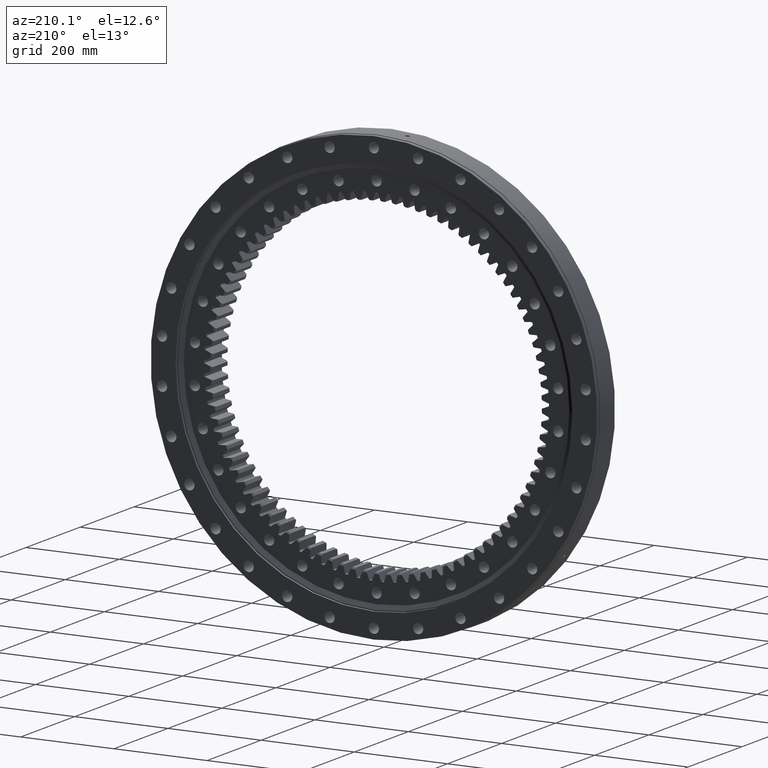
[diagram: clean part render]
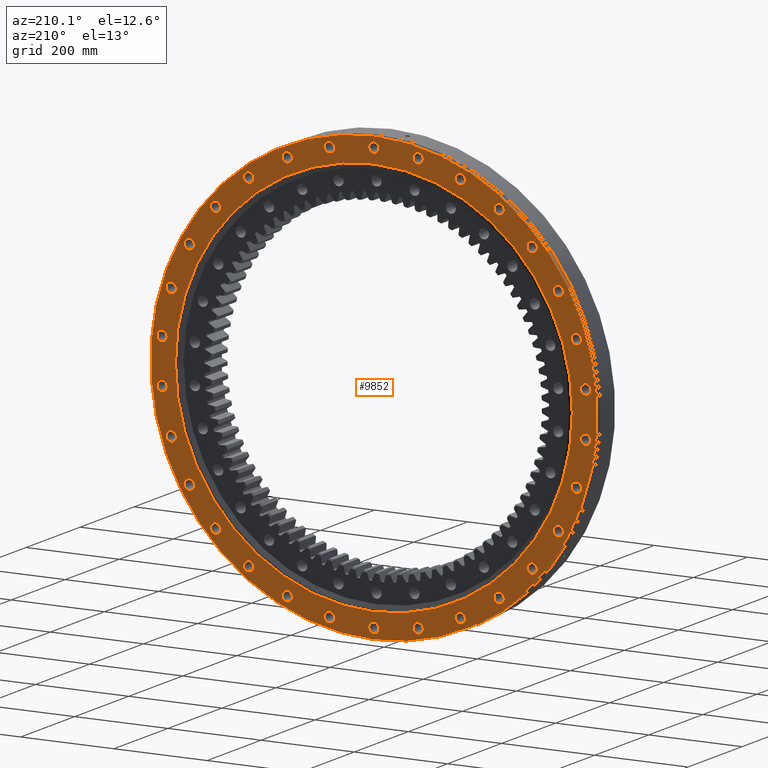
[diagram: same view with one face highlighted and labeled with its STEP entity id]
A machine part, auxiliary view. The second image highlights one B-rep face of the part: STEP entity #9852.
In plain terms, the highlighted planar face has unit normal (0, -1, -0).
Its self-contained STEP definition (entity closure, byte-faithful):
#83 = EDGE_CURVE ( 'NONE', #4740, #24638, #14717, .T. ) ;
#109 = DIRECTION ( 'NONE',  ( 1.173697223544192200E-016, -1.000000000000000000, -3.494217355385783800E-017 ) ) ;
#177 = AXIS2_PLACEMENT_3D ( 'NONE', #20206, #12218, #329 ) ;
#261 = CARTESIAN_POINT ( 'NONE',  ( -443.4965061833019000, 37.50000000000000700, 47.76950771330962900 ) ) ;
#262 = EDGE_CURVE ( 'NONE', #19492, #16299, #4450, .T. ) ;
#329 = DIRECTION ( 'NONE',  ( 0.5877852522924816900, 0.0000000000000000000, -0.8090169943749412300 ) ) ;
#331 = EDGE_CURVE ( 'NONE', #20605, #6690, #3817, .T. ) ;
#338 = CARTESIAN_POINT ( 'NONE',  ( 185.8786458856294800, 37.50000000000007100, 417.4902741426737400 ) ) ;
#413 = AXIS2_PLACEMENT_3D ( 'NONE', #3119, #16996, #5124 ) ;
#438 = DIRECTION ( 'NONE',  ( -0.7431448254773900300, 0.0000000000000000000, -0.6691306063588629000 ) ) ;
#460 = CARTESIAN_POINT ( 'NONE',  ( 2.218847685148177000E-014, 37.50000000000005000, 479.0000000000000000 ) ) ;
#465 = FACE_BOUND ( 'NONE', #8104, .T. ) ;
#467 = EDGE_LOOP ( 'NONE', ( #8834, #19605 ) ) ;
#470 = EDGE_LOOP ( 'NONE', ( #11458, #586 ) ) ;
#513 = DIRECTION ( 'NONE',  ( 1.173697223544192200E-016, -1.000000000000000000, -3.494217355385783800E-017 ) ) ;
#525 = EDGE_CURVE ( 'NONE', #13286, #9805, #15300, .T. ) ;
#540 = CIRCLE ( 'NONE', #16646, 11.00000000000002100 ) ;
#546 = VERTEX_POINT ( 'NONE', #19581 ) ;
#586 = ORIENTED_EDGE ( 'NONE', *, *, #17995, .T. ) ;
#623 = DIRECTION ( 'NONE',  ( 0.2079116908177662500, 0.0000000000000000000, -0.9781476007338041300 ) ) ;
#644 = EDGE_LOOP ( 'NONE', ( #15885, #787 ) ) ;
#737 = DIRECTION ( 'NONE',  ( 0.8660254037844428200, 0.0000000000000000000, -0.4999999999999928900 ) ) ;
#776 = ORIENTED_EDGE ( 'NONE', *, *, #9676, .T. ) ;
#787 = ORIENTED_EDGE ( 'NONE', *, *, #21164, .T. ) ;
#820 = EDGE_CURVE ( 'NONE', #23333, #7106, #20243, .T. ) ;
#850 = CIRCLE ( 'NONE', #4412, 11.00000000000002500 ) ;
#1031 = CARTESIAN_POINT ( 'NONE',  ( 454.4965061832997400, 37.50000000000011400, 47.76950771332886300 ) ) ;
#1060 = EDGE_CURVE ( 'NONE', #9499, #10723, #22089, .T. ) ;
#1075 = EDGE_LOOP ( 'NONE', ( #9775, #2263 ) ) ;
#1085 = FACE_BOUND ( 'NONE', #12071, .T. ) ;
#1106 = DIRECTION ( 'NONE',  ( 1.173697223544192200E-016, -1.000000000000000000, -3.494217355385783800E-017 ) ) ;
#1349 = AXIS2_PLACEMENT_3D ( 'NONE', #5196, #2793, #5812 ) ;
#1359 = DIRECTION ( 'NONE',  ( -0.9945218953682729600, 0.0000000000000000000, -0.1045284632676571500 ) ) ;
#1387 = CIRCLE ( 'NONE', #12049, 479.0000000000000000 ) ;
#1423 = AXIS2_PLACEMENT_3D ( 'NONE', #24230, #12336, #438 ) ;
#1477 = AXIS2_PLACEMENT_3D ( 'NONE', #18313, #6410, #20282 ) ;
#1505 = CARTESIAN_POINT ( 'NONE',  ( 328.6171852431610900, 37.50000000000008500, 305.7926871060072400 ) ) ;
#1666 = EDGE_CURVE ( 'NONE', #19147, #3423, #15547, .T. ) ;
#1674 = DIRECTION ( 'NONE',  ( 1.173697223544192200E-016, -1.000000000000000000, -3.494217355385783800E-017 ) ) ;
#1701 = FACE_BOUND ( 'NONE', #14945, .T. ) ;
#1738 = ORIENTED_EDGE ( 'NONE', *, *, #4466, .T. ) ;
#1752 = EDGE_CURVE ( 'NONE', #2354, #7546, #3754, .T. ) ;
#1819 = CARTESIAN_POINT ( 'NONE',  ( 95.01564270372577400, 37.50000000000008500, -447.0134535353470800 ) ) ;
#1924 = CARTESIAN_POINT ( 'NONE',  ( -465.4965061833019000, 37.50000000000000700, 47.76950771330962900 ) ) ;
#1974 = DIRECTION ( 'NONE',  ( 1.173697223544192200E-016, -1.000000000000000000, -3.494217355385783800E-017 ) ) ;
#1996 = CARTESIAN_POINT ( 'NONE',  ( -95.01564270370674600, 37.50000000000006400, -458.0134535353511800 ) ) ;
#2167 = CARTESIAN_POINT ( 'NONE',  ( 465.4965061833021300, 37.50000000000011400, -47.76950771330653800 ) ) ;
#2218 = ORIENTED_EDGE ( 'NONE', *, *, #17994, .T. ) ;
#2221 = ORIENTED_EDGE ( 'NONE', *, *, #5905, .T. ) ;
#2263 = ORIENTED_EDGE ( 'NONE', *, *, #24584, .T. ) ;
#2269 = VERTEX_POINT ( 'NONE', #20172 ) ;
#2325 = FACE_BOUND ( 'NONE', #18640, .T. ) ;
#2328 = DIRECTION ( 'NONE',  ( 1.173697223544192200E-016, -1.000000000000000000, -3.494217355385783800E-017 ) ) ;
#2354 = VERTEX_POINT ( 'NONE', #11764 ) ;
#2445 = CARTESIAN_POINT ( 'NONE',  ( -185.8786458856471300, 37.50000000000002800, 428.4902741426657800 ) ) ;
#2479 = CARTESIAN_POINT ( 'NONE',  ( -434.6328279468825700, 37.50000000000002100, -141.2207664293590900 ) ) ;
#2540 = CARTESIAN_POINT ( 'NONE',  ( 465.4965061832997400, 37.50000000000011400, 47.76950771332886300 ) ) ;
#2611 = DIRECTION ( 'NONE',  ( 1.173697223544192200E-016, -1.000000000000000000, -3.494217355385783800E-017 ) ) ;
#2685 = DIRECTION ( 'NONE',  ( 5.551115123123597300E-017, 0.0000000000000000000, 1.000000000000000000 ) ) ;
#2723 = CARTESIAN_POINT ( 'NONE',  ( -185.8786458856471300, 37.50000000000002800, 417.4902741426657800 ) ) ;
#2747 = CARTESIAN_POINT ( 'NONE',  ( 395.7736095294939100, 37.50000000000011400, -228.4999999999905600 ) ) ;
#2793 = DIRECTION ( 'NONE',  ( 1.173697223544192200E-016, -1.000000000000000000, -3.494217355385783800E-017 ) ) ;
#2802 = CARTESIAN_POINT ( 'NONE',  ( 95.01564270372578800, 37.50000000000008500, -436.0134535353470800 ) ) ;
#2809 = AXIS2_PLACEMENT_3D ( 'NONE', #12005, #109, #14036 ) ;
#2859 = VERTEX_POINT ( 'NONE', #14334 ) ;
#2909 = VERTEX_POINT ( 'NONE', #16229 ) ;
#2910 = EDGE_CURVE ( 'NONE', #15971, #15478, #23932, .T. ) ;
#2933 = EDGE_CURVE ( 'NONE', #16299, #19492, #23306, .T. ) ;
#2970 = FACE_BOUND ( 'NONE', #13697, .T. ) ;
#2974 = CIRCLE ( 'NONE', #11212, 11.00000000000000700 ) ;
#3037 = DIRECTION ( 'NONE',  ( 0.9945218953682722900, 0.0000000000000000000, 0.1045284632676633900 ) ) ;
#3070 = EDGE_LOOP ( 'NONE', ( #24407, #5270 ) ) ;
#3090 = AXIS2_PLACEMENT_3D ( 'NONE', #3199, #17086, #5208 ) ;
#3119 = CARTESIAN_POINT ( 'NONE',  ( -454.4965061833019000, 37.50000000000000700, 47.76950771330962900 ) ) ;
#3143 = VERTEX_POINT ( 'NONE', #9124 ) ;
#3199 = CARTESIAN_POINT ( 'NONE',  ( -339.6171852431741600, 37.50000000000000700, 305.7926871059926800 ) ) ;
#3216 = DIRECTION ( 'NONE',  ( 1.173697223544192200E-016, -1.000000000000000000, -3.494217355385783800E-017 ) ) ;
#3224 = EDGE_LOOP ( 'NONE', ( #3455, #20352 ) ) ;
#3260 = DIRECTION ( 'NONE',  ( 5.551115123125782700E-017, -3.259609584924124000E-017, 1.000000000000000000 ) ) ;
#3282 = AXIS2_PLACEMENT_3D ( 'NONE', #17788, #5912, #19790 ) ;
#3423 = VERTEX_POINT ( 'NONE', #2445 ) ;
#3427 = AXIS2_PLACEMENT_3D ( 'NONE', #19692, #9783, #25687 ) ;
#3455 = ORIENTED_EDGE ( 'NONE', *, *, #24239, .T. ) ;
#3513 = CARTESIAN_POINT ( 'NONE',  ( -95.01564270372271900, 37.50000000000003600, 447.0134535353477600 ) ) ;
#3588 = DIRECTION ( 'NONE',  ( 1.173697223544192200E-016, -1.000000000000000000, -3.494217355385783800E-017 ) ) ;
#3589 = FACE_BOUND ( 'NONE', #3224, .T. ) ;
#3754 = CIRCLE ( 'NONE', #1349, 11.00000000000003400 ) ;
#3799 = EDGE_LOOP ( 'NONE', ( #7331, #2221 ) ) ;
#3817 = CIRCLE ( 'NONE', #25626, 11.00000000000003000 ) ;
#3925 = AXIS2_PLACEMENT_3D ( 'NONE', #21354, #9458, #23376 ) ;
#3994 = DIRECTION ( 'NONE',  ( 1.173697223544192200E-016, -1.000000000000000000, -3.494217355385783800E-017 ) ) ;
#4018 = DIRECTION ( 'NONE',  ( 1.173697223544192200E-016, -1.000000000000000000, -3.494217355385783800E-017 ) ) ;
#4042 = EDGE_CURVE ( 'NONE', #12716, #8325, #2974, .T. ) ;
#4057 = EDGE_CURVE ( 'NONE', #12728, #9189, #7008, .T. ) ;
#4059 = CIRCLE ( 'NONE', #16546, 11.00000000000001400 ) ;
#4072 = DIRECTION ( 'NONE',  ( 1.173697223544192200E-016, -1.000000000000000000, -3.494217355385783800E-017 ) ) ;
#4086 = CARTESIAN_POINT ( 'NONE',  ( 454.4965061833021300, 37.50000000000011400, -47.76950771330653800 ) ) ;
#4197 = ORIENTED_EDGE ( 'NONE', *, *, #9289, .T. ) ;
#4256 = DIRECTION ( 'NONE',  ( 0.4067366430758068700, 0.0000000000000000000, -0.9135454576425979800 ) ) ;
#4363 = EDGE_CURVE ( 'NONE', #20088, #13322, #1387, .T. ) ;
#4412 = AXIS2_PLACEMENT_3D ( 'NONE', #13887, #25763, #11865 ) ;
#4450 = CIRCLE ( 'NONE', #20286, 11.00000000000003700 ) ;
#4466 = EDGE_CURVE ( 'NONE', #6724, #15420, #16001, .T. ) ;
#4494 = AXIS2_PLACEMENT_3D ( 'NONE', #20223, #8345, #22230 ) ;
#4497 = DIRECTION ( 'NONE',  ( -0.9510565162951524200, 0.0000000000000000000, -0.3090169943749510000 ) ) ;
#4507 = VERTEX_POINT ( 'NONE', #15413 ) ;
#4590 = CARTESIAN_POINT ( 'NONE',  ( 406.7736095294824800, 37.50000000000009900, 228.5000000000103700 ) ) ;
#4740 = VERTEX_POINT ( 'NONE', #5519 ) ;
#4757 = CIRCLE ( 'NONE', #8595, 11.00000000000003600 ) ;
#4822 = EDGE_CURVE ( 'NONE', #20591, #25759, #12557, .T. ) ;
#4845 = CARTESIAN_POINT ( 'NONE',  ( -6.640370916226545200E-012, 37.50000000000005000, 457.0000000000000000 ) ) ;
#4863 = ORIENTED_EDGE ( 'NONE', *, *, #1666, .T. ) ;
#4871 = CARTESIAN_POINT ( 'NONE',  ( -465.4965061833000800, 37.50000000000000700, -47.76950771332589300 ) ) ;
#4919 = CIRCLE ( 'NONE', #3282, 11.00000000000000000 ) ;
#5006 = DIRECTION ( 'NONE',  ( 5.551115123125782700E-017, -2.897241713531202100E-017, 1.000000000000000000 ) ) ;
#5007 = CARTESIAN_POINT ( 'NONE',  ( -423.6328279468825700, 37.50000000000002100, -141.2207664293590900 ) ) ;
#5061 = CARTESIAN_POINT ( 'NONE',  ( -268.6178602976660800, 37.50000000000001400, 369.7207664293467200 ) ) ;
#5098 = AXIS2_PLACEMENT_3D ( 'NONE', #6561, #20435, #8553 ) ;
#5108 = AXIS2_PLACEMENT_3D ( 'NONE', #338, #2328, #18234 ) ;
#5124 = DIRECTION ( 'NONE',  ( -0.9945218953682737300, 0.0000000000000000000, 0.1045284632676502900 ) ) ;
#5148 = FACE_BOUND ( 'NONE', #19888, .T. ) ;
#5170 = DIRECTION ( 'NONE',  ( 1.173697223544192200E-016, -1.000000000000000000, -3.494217355385783800E-017 ) ) ;
#5172 = EDGE_LOOP ( 'NONE', ( #21723, #12527 ) ) ;
#5191 = DIRECTION ( 'NONE',  ( 1.173697223544192200E-016, -1.000000000000000000, -3.494217355385783800E-017 ) ) ;
#5196 = CARTESIAN_POINT ( 'NONE',  ( -268.6178602976529500, 37.50000000000004300, -369.7207664293563300 ) ) ;
#5208 = DIRECTION ( 'NONE',  ( -0.7431448254773948000, 0.0000000000000000000, 0.6691306063588575700 ) ) ;
#5247 = ORIENTED_EDGE ( 'NONE', *, *, #20186, .T. ) ;
#5264 = CARTESIAN_POINT ( 'NONE',  ( -4.401364588290727900E-015, 37.50000000000006400, 1.310331508269670900E-015 ) ) ;
#5270 = ORIENTED_EDGE ( 'NONE', *, *, #11708, .T. ) ;
#5329 = DIRECTION ( 'NONE',  ( -0.9510565162951539800, 0.0000000000000000000, 0.3090169943749464500 ) ) ;
#5375 = EDGE_CURVE ( 'NONE', #7106, #23333, #20288, .T. ) ;
#5383 = ORIENTED_EDGE ( 'NONE', *, *, #4822, .T. ) ;
#5415 = AXIS2_PLACEMENT_3D ( 'NONE', #21815, #9934, #23831 ) ;
#5497 = EDGE_CURVE ( 'NONE', #11522, #546, #11278, .T. ) ;
#5512 = DIRECTION ( 'NONE',  ( -0.2079116908177602000, 0.0000000000000000000, 0.9781476007338053600 ) ) ;
#5519 = CARTESIAN_POINT ( 'NONE',  ( -268.6178602976660800, 37.50000000000001400, 380.7207664293467200 ) ) ;
#5591 = CARTESIAN_POINT ( 'NONE',  ( -328.6171852431741600, 37.50000000000000700, 305.7926871059926800 ) ) ;
#5607 = CARTESIAN_POINT ( 'NONE',  ( 384.7736095294824800, 37.50000000000009900, 228.5000000000103700 ) ) ;
#5671 = AXIS2_PLACEMENT_3D ( 'NONE', #5061, #14611, #8555 ) ;
#5738 = AXIS2_PLACEMENT_3D ( 'NONE', #17812, #5932, #19809 ) ;
#5753 = DIRECTION ( 'NONE',  ( 1.173697223544192200E-016, -1.000000000000000000, -3.494217355385783800E-017 ) ) ;
#5758 = FACE_BOUND ( 'NONE', #10950, .T. ) ;
#5799 = EDGE_LOOP ( 'NONE', ( #9144, #14270 ) ) ;
#5812 = DIRECTION ( 'NONE',  ( -0.5877852522924702500, 0.0000000000000000000, -0.8090169943749494500 ) ) ;
#5905 = EDGE_CURVE ( 'NONE', #18511, #21846, #9085, .T. ) ;
#5912 = DIRECTION ( 'NONE',  ( 1.173697223544192200E-016, -1.000000000000000000, -3.494217355385783800E-017 ) ) ;
#5932 = DIRECTION ( 'NONE',  ( 1.173697223544192200E-016, -1.000000000000000000, -3.494217355385783800E-017 ) ) ;
#5977 = AXIS2_PLACEMENT_3D ( 'NONE', #19438, #7547, #21421 ) ;
#6083 = DIRECTION ( 'NONE',  ( 0.9945218953682744000, 0.0000000000000000000, -0.1045284632676440600 ) ) ;
#6115 = EDGE_CURVE ( 'NONE', #4507, #22560, #4757, .T. ) ;
#6164 = CARTESIAN_POINT ( 'NONE',  ( -384.7736095294923800, 37.50000000000000700, 228.4999999999933500 ) ) ;
#6302 = DIRECTION ( 'NONE',  ( -1.173697223544192200E-016, 1.000000000000000000, 3.494217355385783800E-017 ) ) ;
#6322 = CARTESIAN_POINT ( 'NONE',  ( 268.6178602976686400, 37.50000000000010700, -358.7207664293447900 ) ) ;
#6349 = EDGE_CURVE ( 'NONE', #3143, #23401, #21475, .T. ) ;
#6378 = FACE_BOUND ( 'NONE', #10337, .T. ) ;
#6381 = VERTEX_POINT ( 'NONE', #23654 ) ;
#6410 = DIRECTION ( 'NONE',  ( 1.173697223544192200E-016, -1.000000000000000000, -3.494217355385783800E-017 ) ) ;
#6561 = CARTESIAN_POINT ( 'NONE',  ( -395.7736095294841300, 37.50000000000002100, -228.5000000000076500 ) ) ;
#6572 = AXIS2_PLACEMENT_3D ( 'NONE', #2747, #14650, #737 ) ;
#6618 = EDGE_LOOP ( 'NONE', ( #10141, #20632 ) ) ;
#6642 = ORIENTED_EDGE ( 'NONE', *, *, #83, .T. ) ;
#6648 = DIRECTION ( 'NONE',  ( 1.173697223544192200E-016, -1.000000000000000000, -3.494217355385783800E-017 ) ) ;
#6673 = CARTESIAN_POINT ( 'NONE',  ( 6.635993325690025900E-012, 37.50000000000007800, -446.0000000000000000 ) ) ;
#6690 = VERTEX_POINT ( 'NONE', #17765 ) ;
#6724 = VERTEX_POINT ( 'NONE', #8393 ) ;
#6731 = EDGE_CURVE ( 'NONE', #13322, #20088, #24589, .T. ) ;
#6776 = AXIS2_PLACEMENT_3D ( 'NONE', #10223, #24107, #12207 ) ;
#6826 = ORIENTED_EDGE ( 'NONE', *, *, #20414, .T. ) ;
#6829 = EDGE_LOOP ( 'NONE', ( #13326, #10577 ) ) ;
#6841 = CIRCLE ( 'NONE', #13609, 11.00000000000003400 ) ;
#6999 = FACE_BOUND ( 'NONE', #467, .T. ) ;
#7008 = CIRCLE ( 'NONE', #16533, 10.99999999999999600 ) ;
#7019 = VERTEX_POINT ( 'NONE', #19363 ) ;
#7069 = EDGE_CURVE ( 'NONE', #13431, #25204, #8986, .T. ) ;
#7106 = VERTEX_POINT ( 'NONE', #15893 ) ;
#7154 = CARTESIAN_POINT ( 'NONE',  ( 95.01564270372578800, 37.50000000000008500, -458.0134535353471400 ) ) ;
#7158 = DIRECTION ( 'NONE',  ( 0.7431448254773995700, 0.0000000000000000000, -0.6691306063588522400 ) ) ;
#7175 = VERTEX_POINT ( 'NONE', #2167 ) ;
#7195 = DIRECTION ( 'NONE',  ( 1.173697223544192200E-016, -1.000000000000000000, -3.494217355385783800E-017 ) ) ;
#7268 = AXIS2_PLACEMENT_3D ( 'NONE', #15892, #3994, #17884 ) ;
#7274 = ORIENTED_EDGE ( 'NONE', *, *, #12313, .T. ) ;
#7306 = AXIS2_PLACEMENT_3D ( 'NONE', #11544, #25430, #13545 ) ;
#7331 = ORIENTED_EDGE ( 'NONE', *, *, #21930, .T. ) ;
#7333 = CARTESIAN_POINT ( 'NONE',  ( 423.6328279468816000, 37.50000000000009900, 141.2207664293618200 ) ) ;
#7347 = CIRCLE ( 'NONE', #5098, 11.00000000000002300 ) ;
#7399 = DIRECTION ( 'NONE',  ( -0.2079116908177602000, 0.0000000000000000000, 0.9781476007338053600 ) ) ;
#7541 = DIRECTION ( 'NONE',  ( -0.4067366430758004900, 0.0000000000000000000, 0.9135454576426008700 ) ) ;
#7546 = VERTEX_POINT ( 'NONE', #10428 ) ;
#7547 = DIRECTION ( 'NONE',  ( 1.173697223544192200E-016, -1.000000000000000000, -3.494217355385783800E-017 ) ) ;
#7616 = FACE_BOUND ( 'NONE', #10038, .T. ) ;
#7638 = VERTEX_POINT ( 'NONE', #18409 ) ;
#7640 = CARTESIAN_POINT ( 'NONE',  ( 185.8786458856498900, 37.50000000000009200, -417.4902741426645300 ) ) ;
#7659 = CARTESIAN_POINT ( 'NONE',  ( 434.6328279468816000, 37.50000000000009900, 141.2207664293618200 ) ) ;
#7864 = EDGE_CURVE ( 'NONE', #25759, #20591, #19825, .T. ) ;
#8029 = EDGE_CURVE ( 'NONE', #20523, #9698, #850, .T. ) ;
#8031 = CIRCLE ( 'NONE', #7306, 11.00000000000003200 ) ;
#8060 = VERTEX_POINT ( 'NONE', #4590 ) ;
#8067 = CIRCLE ( 'NONE', #3090, 11.00000000000003600 ) ;
#8092 = AXIS2_PLACEMENT_3D ( 'NONE', #8519, #22410, #10533 ) ;
#8104 = EDGE_LOOP ( 'NONE', ( #1738, #7274 ) ) ;
#8131 = CIRCLE ( 'NONE', #18542, 11.00000000000002700 ) ;
#8134 = CARTESIAN_POINT ( 'NONE',  ( 185.8786458856498900, 37.50000000000009200, -428.4902741426645300 ) ) ;
#8209 = CIRCLE ( 'NONE', #14356, 11.00000000000001100 ) ;
#8247 = FACE_BOUND ( 'NONE', #3070, .T. ) ;
#8275 = CARTESIAN_POINT ( 'NONE',  ( -268.6178602976660800, 37.50000000000001400, 369.7207664293467200 ) ) ;
#8325 = VERTEX_POINT ( 'NONE', #24699 ) ;
#8334 = EDGE_CURVE ( 'NONE', #7019, #11051, #11112, .T. ) ;
#8345 = DIRECTION ( 'NONE',  ( 1.173697223544192200E-016, -1.000000000000000000, -3.494217355385783800E-017 ) ) ;
#8393 = CARTESIAN_POINT ( 'NONE',  ( 268.6178602976503400, 37.50000000000008500, 380.7207664293582100 ) ) ;
#8425 = EDGE_CURVE ( 'NONE', #7638, #11645, #14533, .T. ) ;
#8436 = CARTESIAN_POINT ( 'NONE',  ( 423.6328279468886000, 37.50000000000011400, -141.2207664293405000 ) ) ;
#8504 = DIRECTION ( 'NONE',  ( 1.173697223544192200E-016, -1.000000000000000000, -3.494217355385783800E-017 ) ) ;
#8519 = CARTESIAN_POINT ( 'NONE',  ( -185.8786458856321500, 37.50000000000005700, -417.4902741426724300 ) ) ;
#8553 = DIRECTION ( 'NONE',  ( -0.8660254037844360400, 0.0000000000000000000, -0.5000000000000044400 ) ) ;
#8555 = DIRECTION ( 'NONE',  ( -0.5877852522924759100, 0.0000000000000000000, 0.8090169943749453400 ) ) ;
#8595 = AXIS2_PLACEMENT_3D ( 'NONE', #10475, #17145, #22093 ) ;
#8723 = CARTESIAN_POINT ( 'NONE',  ( -6.640370916226545200E-012, 37.50000000000005000, 457.0000000000000000 ) ) ;
#8829 = DIRECTION ( 'NONE',  ( 1.173697223544192200E-016, -1.000000000000000000, -3.494217355385783800E-017 ) ) ;
#8834 = ORIENTED_EDGE ( 'NONE', *, *, #13907, .T. ) ;
#8885 = EDGE_LOOP ( 'NONE', ( #25429, #15529 ) ) ;
#8890 = AXIS2_PLACEMENT_3D ( 'NONE', #25158, #23160, #1359 ) ;
#8936 = CIRCLE ( 'NONE', #9923, 11.00000000000000900 ) ;
#8941 = CARTESIAN_POINT ( 'NONE',  ( -185.8786458856471300, 37.50000000000002800, 406.4902741426657300 ) ) ;
#8959 = EDGE_CURVE ( 'NONE', #19829, #11517, #15743, .T. ) ;
#8986 = CIRCLE ( 'NONE', #25744, 11.00000000000002100 ) ;
#9026 = DIRECTION ( 'NONE',  ( 1.173697223544192200E-016, -1.000000000000000000, -3.494217355385783800E-017 ) ) ;
#9045 = DIRECTION ( 'NONE',  ( 1.173697223544192200E-016, -1.000000000000000000, -3.494217355385783800E-017 ) ) ;
#9085 = CIRCLE ( 'NONE', #5108, 11.00000000000000900 ) ;
#9107 = CARTESIAN_POINT ( 'NONE',  ( 1.923250804841729100E-014, 37.50000000000005000, 425.7500000000000000 ) ) ;
#9122 = EDGE_CURVE ( 'NONE', #2859, #12568, #7347, .T. ) ;
#9124 = CARTESIAN_POINT ( 'NONE',  ( -6.638514134392632700E-012, 37.50000000000005000, 446.0000000000000000 ) ) ;
#9144 = ORIENTED_EDGE ( 'NONE', *, *, #8959, .T. ) ;
#9189 = VERTEX_POINT ( 'NONE', #16714 ) ;
#9223 = CIRCLE ( 'NONE', #24623, 11.00000000000002100 ) ;
#9231 = VERTEX_POINT ( 'NONE', #5007 ) ;
#9289 = EDGE_CURVE ( 'NONE', #10668, #17536, #24109, .T. ) ;
#9324 = DIRECTION ( 'NONE',  ( 1.173697223544192200E-016, -1.000000000000000000, -3.494217355385783800E-017 ) ) ;
#9375 = DIRECTION ( 'NONE',  ( 1.173697223544192200E-016, -1.000000000000000000, -3.494217355385783800E-017 ) ) ;
#9458 = DIRECTION ( 'NONE',  ( 1.173697223544192200E-016, -1.000000000000000000, -3.494217355385783800E-017 ) ) ;
#9499 = VERTEX_POINT ( 'NONE', #1924 ) ;
#9634 = DIRECTION ( 'NONE',  ( 0.9510565162951500900, 0.0000000000000000000, 0.3090169943749578300 ) ) ;
#9658 = CARTESIAN_POINT ( 'NONE',  ( 339.6171852431610900, 37.50000000000008500, 305.7926871060072400 ) ) ;
#9676 = EDGE_CURVE ( 'NONE', #6690, #20605, #11972, .T. ) ;
#9698 = VERTEX_POINT ( 'NONE', #8436 ) ;
#9705 = EDGE_CURVE ( 'NONE', #22406, #17863, #16642, .T. ) ;
#9775 = ORIENTED_EDGE ( 'NONE', *, *, #23617, .T. ) ;
#9783 = DIRECTION ( 'NONE',  ( 1.173697223544192200E-016, -1.000000000000000000, -3.494217355385783800E-017 ) ) ;
#9805 = VERTEX_POINT ( 'NONE', #16686 ) ;
#9852 = ADVANCED_FACE ( 'NONE', ( #18812, #13525, #3589, #19420, #8247, #2970, #23468, #18184, #12905, #7616, #2325, #22841, #17555, #12271, #6999, #1701, #22212, #16935, #11657, #6378, #1085, #21570, #16304, #11040, #5758, #465, #20958, #15688, #10423, #5148, #25633, #20340 ), #19018, .F. ) ;
#9862 = ORIENTED_EDGE ( 'NONE', *, *, #18224, .T. ) ;
#9875 = DIRECTION ( 'NONE',  ( 0.7431448254773852500, 0.0000000000000000000, 0.6691306063588681200 ) ) ;
#9923 = AXIS2_PLACEMENT_3D ( 'NONE', #4086, #17967, #6083 ) ;
#9934 = DIRECTION ( 'NONE',  ( 1.173697223544192200E-016, -1.000000000000000000, -3.494217355385783800E-017 ) ) ;
#9974 = AXIS2_PLACEMENT_3D ( 'NONE', #15912, #4018, #17902 ) ;
#10038 = EDGE_LOOP ( 'NONE', ( #776, #17063 ) ) ;
#10112 = ORIENTED_EDGE ( 'NONE', *, *, #15553, .T. ) ;
#10141 = ORIENTED_EDGE ( 'NONE', *, *, #4042, .T. ) ;
#10177 = CIRCLE ( 'NONE', #7268, 11.00000000000000000 ) ;
#10223 = CARTESIAN_POINT ( 'NONE',  ( 434.6328279468886000, 37.50000000000011400, -141.2207664293405000 ) ) ;
#10245 = ORIENTED_EDGE ( 'NONE', *, *, #11951, .T. ) ;
#10265 = AXIS2_PLACEMENT_3D ( 'NONE', #9107, #3216, #17104 ) ;
#10278 = DIRECTION ( 'NONE',  ( -0.5877852522924759100, 0.0000000000000000000, 0.8090169943749453400 ) ) ;
#10337 = EDGE_LOOP ( 'NONE', ( #21549, #16346 ) ) ;
#10390 = ORIENTED_EDGE ( 'NONE', *, *, #17416, .T. ) ;
#10423 = FACE_BOUND ( 'NONE', #6618, .T. ) ;
#10428 = CARTESIAN_POINT ( 'NONE',  ( -268.6178602976529500, 37.50000000000004300, -380.7207664293563300 ) ) ;
#10457 = DIRECTION ( 'NONE',  ( 1.173697223544192200E-016, -1.000000000000000000, -3.494217355385783800E-017 ) ) ;
#10475 = CARTESIAN_POINT ( 'NONE',  ( -339.6171852431741600, 37.50000000000000700, 305.7926871059926800 ) ) ;
#10533 = DIRECTION ( 'NONE',  ( -0.4067366430757944400, 0.0000000000000000000, -0.9135454576426034200 ) ) ;
#10577 = ORIENTED_EDGE ( 'NONE', *, *, #5375, .T. ) ;
#10668 = VERTEX_POINT ( 'NONE', #1996 ) ;
#10723 = VERTEX_POINT ( 'NONE', #261 ) ;
#10728 = DIRECTION ( 'NONE',  ( 5.551115123123597300E-017, 0.0000000000000000000, 1.000000000000000000 ) ) ;
#10806 = CARTESIAN_POINT ( 'NONE',  ( 268.6178602976503400, 37.50000000000008500, 358.7207664293582100 ) ) ;
#10950 = EDGE_LOOP ( 'NONE', ( #14564, #24175 ) ) ;
#10996 = EDGE_CURVE ( 'NONE', #15478, #15971, #6841, .T. ) ;
#11040 = FACE_BOUND ( 'NONE', #8885, .T. ) ;
#11051 = VERTEX_POINT ( 'NONE', #13354 ) ;
#11112 = CIRCLE ( 'NONE', #6572, 11.00000000000000000 ) ;
#11150 = CIRCLE ( 'NONE', #14583, 11.00000000000001400 ) ;
#11212 = AXIS2_PLACEMENT_3D ( 'NONE', #19035, #9375, #7399 ) ;
#11224 = DIRECTION ( 'NONE',  ( 1.173697223544192200E-016, -1.000000000000000000, -3.494217355385783800E-017 ) ) ;
#11278 = CIRCLE ( 'NONE', #11398, 11.00000000000002700 ) ;
#11398 = AXIS2_PLACEMENT_3D ( 'NONE', #9658, #1974, #9875 ) ;
#11458 = ORIENTED_EDGE ( 'NONE', *, *, #9705, .T. ) ;
#11498 = CIRCLE ( 'NONE', #5415, 10.99999999999999300 ) ;
#11517 = VERTEX_POINT ( 'NONE', #7333 ) ;
#11521 = EDGE_CURVE ( 'NONE', #8325, #12716, #22654, .T. ) ;
#11522 = VERTEX_POINT ( 'NONE', #1505 ) ;
#11544 = CARTESIAN_POINT ( 'NONE',  ( -185.8786458856321500, 37.50000000000005700, -417.4902741426724300 ) ) ;
#11557 = DIRECTION ( 'NONE',  ( 1.173697223544192200E-016, -1.000000000000000000, -3.494217355385783800E-017 ) ) ;
#11645 = VERTEX_POINT ( 'NONE', #23647 ) ;
#11657 = FACE_BOUND ( 'NONE', #13488, .T. ) ;
#11708 = EDGE_CURVE ( 'NONE', #9189, #12728, #19538, .T. ) ;
#11764 = CARTESIAN_POINT ( 'NONE',  ( -268.6178602976529500, 37.50000000000004300, -358.7207664293562700 ) ) ;
#11861 = ORIENTED_EDGE ( 'NONE', *, *, #13857, .T. ) ;
#11865 = DIRECTION ( 'NONE',  ( 0.9510565162951566400, 0.0000000000000000000, -0.3090169943749381300 ) ) ;
#11896 = AXIS2_PLACEMENT_3D ( 'NONE', #7659, #21522, #9634 ) ;
#11919 = EDGE_LOOP ( 'NONE', ( #19785, #4197 ) ) ;
#11951 = EDGE_CURVE ( 'NONE', #25575, #2269, #14572, .T. ) ;
#11954 = CARTESIAN_POINT ( 'NONE',  ( -95.01564270372270500, 37.50000000000003600, 458.0134535353477600 ) ) ;
#11972 = CIRCLE ( 'NONE', #1423, 11.00000000000003000 ) ;
#12005 = CARTESIAN_POINT ( 'NONE',  ( -434.6328279468876300, 37.50000000000000700, 141.2207664293435700 ) ) ;
#12049 = AXIS2_PLACEMENT_3D ( 'NONE', #19568, #18883, #5006 ) ;
#12071 = EDGE_LOOP ( 'NONE', ( #15917, #10390 ) ) ;
#12086 = AXIS2_PLACEMENT_3D ( 'NONE', #4845, #8504, #2685 ) ;
#12131 = ORIENTED_EDGE ( 'NONE', *, *, #2910, .T. ) ;
#12136 = DIRECTION ( 'NONE',  ( -0.7431448254773900300, 0.0000000000000000000, -0.6691306063588629000 ) ) ;
#12166 = AXIS2_PLACEMENT_3D ( 'NONE', #20908, #9026, #22917 ) ;
#12207 = DIRECTION ( 'NONE',  ( 0.9510565162951566400, 0.0000000000000000000, -0.3090169943749381300 ) ) ;
#12218 = DIRECTION ( 'NONE',  ( 1.173697223544192200E-016, -1.000000000000000000, -3.494217355385783800E-017 ) ) ;
#12271 = FACE_BOUND ( 'NONE', #16455, .T. ) ;
#12313 = EDGE_CURVE ( 'NONE', #15420, #6724, #12986, .T. ) ;
#12336 = DIRECTION ( 'NONE',  ( 1.173697223544192200E-016, -1.000000000000000000, -3.494217355385783800E-017 ) ) ;
#12363 = CIRCLE ( 'NONE', #1477, 425.7500000000000000 ) ;
#12413 = DIRECTION ( 'NONE',  ( 0.2079116908177470700, 0.0000000000000000000, 0.9781476007338081300 ) ) ;
#12518 = DIRECTION ( 'NONE',  ( 1.173697223544192200E-016, -1.000000000000000000, -3.494217355385783800E-017 ) ) ;
#12527 = ORIENTED_EDGE ( 'NONE', *, *, #4363, .T. ) ;
#12557 = CIRCLE ( 'NONE', #5738, 11.00000000000002500 ) ;
#12568 = VERTEX_POINT ( 'NONE', #25078 ) ;
#12625 = CARTESIAN_POINT ( 'NONE',  ( -185.8786458856321500, 37.50000000000005700, -406.4902741426724300 ) ) ;
#12716 = VERTEX_POINT ( 'NONE', #11954 ) ;
#12728 = VERTEX_POINT ( 'NONE', #14070 ) ;
#12905 = FACE_BOUND ( 'NONE', #13721, .T. ) ;
#12958 = ORIENTED_EDGE ( 'NONE', *, *, #1060, .T. ) ;
#12986 = CIRCLE ( 'NONE', #4494, 11.00000000000001200 ) ;
#13003 = ORIENTED_EDGE ( 'NONE', *, *, #22833, .T. ) ;
#13148 = AXIS2_PLACEMENT_3D ( 'NONE', #15768, #17934, #7158 ) ;
#13165 = CIRCLE ( 'NONE', #13867, 11.00000000000003200 ) ;
#13265 = ORIENTED_EDGE ( 'NONE', *, *, #7864, .T. ) ;
#13286 = VERTEX_POINT ( 'NONE', #14202 ) ;
#13322 = VERTEX_POINT ( 'NONE', #460 ) ;
#13326 = ORIENTED_EDGE ( 'NONE', *, *, #820, .T. ) ;
#13341 = CIRCLE ( 'NONE', #413, 11.00000000000001600 ) ;
#13354 = CARTESIAN_POINT ( 'NONE',  ( 406.7736095294939100, 37.50000000000011400, -228.4999999999905600 ) ) ;
#13431 = VERTEX_POINT ( 'NONE', #7154 ) ;
#13488 = EDGE_LOOP ( 'NONE', ( #17345, #16050 ) ) ;
#13514 = CIRCLE ( 'NONE', #16666, 11.00000000000002800 ) ;
#13525 = FACE_BOUND ( 'NONE', #21235, .T. ) ;
#13545 = DIRECTION ( 'NONE',  ( -0.4067366430757944400, 0.0000000000000000000, -0.9135454576426034200 ) ) ;
#13551 = EDGE_LOOP ( 'NONE', ( #22214, #13003 ) ) ;
#13591 = CARTESIAN_POINT ( 'NONE',  ( 434.6328279468816000, 37.50000000000009900, 141.2207664293618200 ) ) ;
#13609 = AXIS2_PLACEMENT_3D ( 'NONE', #19090, #7195, #21070 ) ;
#13697 = EDGE_LOOP ( 'NONE', ( #24819, #12958 ) ) ;
#13705 = EDGE_CURVE ( 'NONE', #3423, #19147, #24155, .T. ) ;
#13721 = EDGE_LOOP ( 'NONE', ( #2218, #19136 ) ) ;
#13724 = DIRECTION ( 'NONE',  ( 1.173697223544192200E-016, -1.000000000000000000, -3.494217355385783800E-017 ) ) ;
#13811 = EDGE_LOOP ( 'NONE', ( #9862, #18530 ) ) ;
#13857 = EDGE_CURVE ( 'NONE', #24638, #4740, #540, .T. ) ;
#13867 = AXIS2_PLACEMENT_3D ( 'NONE', #20715, #8829, #22716 ) ;
#13887 = CARTESIAN_POINT ( 'NONE',  ( 434.6328279468886000, 37.50000000000011400, -141.2207664293405000 ) ) ;
#13907 = EDGE_CURVE ( 'NONE', #25204, #13431, #9223, .T. ) ;
#13967 = AXIS2_PLACEMENT_3D ( 'NONE', #3513, #17398, #5512 ) ;
#14036 = DIRECTION ( 'NONE',  ( -0.9510565162951539800, 0.0000000000000000000, 0.3090169943749464500 ) ) ;
#14070 = CARTESIAN_POINT ( 'NONE',  ( -423.6328279468876300, 37.50000000000000700, 141.2207664293435700 ) ) ;
#14202 = CARTESIAN_POINT ( 'NONE',  ( 350.6171852431762700, 37.50000000000011400, -305.7926871059904100 ) ) ;
#14270 = ORIENTED_EDGE ( 'NONE', *, *, #15531, .T. ) ;
#14334 = CARTESIAN_POINT ( 'NONE',  ( -406.7736095294841300, 37.50000000000002100, -228.5000000000076500 ) ) ;
#14356 = AXIS2_PLACEMENT_3D ( 'NONE', #15965, #4072, #17955 ) ;
#14420 = CARTESIAN_POINT ( 'NONE',  ( 95.01564270370380400, 37.50000000000006400, 447.0134535353517400 ) ) ;
#14525 = CARTESIAN_POINT ( 'NONE',  ( 339.6171852431762700, 37.50000000000011400, -305.7926871059904100 ) ) ;
#14533 = CIRCLE ( 'NONE', #15891, 425.7500000000000000 ) ;
#14562 = DIRECTION ( 'NONE',  ( 5.551115123125782700E-017, -2.897241713531202100E-017, 1.000000000000000000 ) ) ;
#14564 = ORIENTED_EDGE ( 'NONE', *, *, #22531, .T. ) ;
#14572 = CIRCLE ( 'NONE', #22767, 11.00000000000002800 ) ;
#14579 = AXIS2_PLACEMENT_3D ( 'NONE', #17633, #5753, #19630 ) ;
#14583 = AXIS2_PLACEMENT_3D ( 'NONE', #2479, #16368, #4497 ) ;
#14611 = DIRECTION ( 'NONE',  ( 1.173697223544192200E-016, -1.000000000000000000, -3.494217355385783800E-017 ) ) ;
#14650 = DIRECTION ( 'NONE',  ( 1.173697223544192200E-016, -1.000000000000000000, -3.494217355385783800E-017 ) ) ;
#14717 = CIRCLE ( 'NONE', #5671, 11.00000000000002100 ) ;
#14941 = DIRECTION ( 'NONE',  ( 1.173697223544192200E-016, -1.000000000000000000, -3.494217355385783800E-017 ) ) ;
#14945 = EDGE_LOOP ( 'NONE', ( #19450, #17544 ) ) ;
#14997 = DIRECTION ( 'NONE',  ( -0.9945218953682737300, 0.0000000000000000000, 0.1045284632676502900 ) ) ;
#15055 = VERTEX_POINT ( 'NONE', #5607 ) ;
#15231 = CIRCLE ( 'NONE', #6776, 11.00000000000002500 ) ;
#15250 = EDGE_LOOP ( 'NONE', ( #10245, #6826 ) ) ;
#15252 = CARTESIAN_POINT ( 'NONE',  ( 185.8786458856294800, 37.50000000000007100, 406.4902741426737400 ) ) ;
#15300 = CIRCLE ( 'NONE', #13148, 11.00000000000003900 ) ;
#15386 = CARTESIAN_POINT ( 'NONE',  ( 95.01564270370380400, 37.50000000000006400, 458.0134535353518000 ) ) ;
#15411 = CARTESIAN_POINT ( 'NONE',  ( 445.6328279468816600, 37.50000000000009900, 141.2207664293618200 ) ) ;
#15413 = CARTESIAN_POINT ( 'NONE',  ( -350.6171852431742200, 37.50000000000000700, 305.7926871059926800 ) ) ;
#15420 = VERTEX_POINT ( 'NONE', #10806 ) ;
#15473 = CARTESIAN_POINT ( 'NONE',  ( 339.6171852431610900, 37.50000000000008500, 305.7926871060072400 ) ) ;
#15478 = VERTEX_POINT ( 'NONE', #15386 ) ;
#15484 = EDGE_CURVE ( 'NONE', #23437, #17371, #18724, .T. ) ;
#15529 = ORIENTED_EDGE ( 'NONE', *, *, #25485, .T. ) ;
#15531 = EDGE_CURVE ( 'NONE', #11517, #19829, #22113, .T. ) ;
#15547 = CIRCLE ( 'NONE', #19160, 11.00000000000000400 ) ;
#15553 = EDGE_CURVE ( 'NONE', #7546, #2354, #16846, .T. ) ;
#15583 = DIRECTION ( 'NONE',  ( 0.9510565162951500900, 0.0000000000000000000, 0.3090169943749578300 ) ) ;
#15588 = AXIS2_PLACEMENT_3D ( 'NONE', #20187, #6302, #14562 ) ;
#15688 = FACE_BOUND ( 'NONE', #21995, .T. ) ;
#15743 = CIRCLE ( 'NONE', #16221, 11.00000000000004100 ) ;
#15768 = CARTESIAN_POINT ( 'NONE',  ( 339.6171852431762700, 37.50000000000011400, -305.7926871059904100 ) ) ;
#15885 = ORIENTED_EDGE ( 'NONE', *, *, #15920, .T. ) ;
#15891 = AXIS2_PLACEMENT_3D ( 'NONE', #5264, #17137, #3260 ) ;
#15892 = CARTESIAN_POINT ( 'NONE',  ( 395.7736095294824800, 37.50000000000009900, 228.5000000000103700 ) ) ;
#15893 = CARTESIAN_POINT ( 'NONE',  ( 268.6178602976686400, 37.50000000000010700, -380.7207664293448500 ) ) ;
#15912 = CARTESIAN_POINT ( 'NONE',  ( -185.8786458856471300, 37.50000000000002800, 417.4902741426657800 ) ) ;
#15917 = ORIENTED_EDGE ( 'NONE', *, *, #25519, .T. ) ;
#15920 = EDGE_CURVE ( 'NONE', #17483, #2909, #17138, .T. ) ;
#15965 = CARTESIAN_POINT ( 'NONE',  ( 6.631568187049964400E-012, 37.50000000000007800, -457.0000000000000000 ) ) ;
#15971 = VERTEX_POINT ( 'NONE', #24994 ) ;
#16001 = CIRCLE ( 'NONE', #18712, 11.00000000000001200 ) ;
#16050 = ORIENTED_EDGE ( 'NONE', *, *, #8334, .T. ) ;
#16205 = CARTESIAN_POINT ( 'NONE',  ( 185.8786458856498900, 37.50000000000009200, -406.4902741426645300 ) ) ;
#16221 = AXIS2_PLACEMENT_3D ( 'NONE', #13591, #1674, #15583 ) ;
#16229 = CARTESIAN_POINT ( 'NONE',  ( 443.4965061832997400, 37.50000000000011400, 47.76950771332886300 ) ) ;
#16299 = VERTEX_POINT ( 'NONE', #16205 ) ;
#16304 = FACE_BOUND ( 'NONE', #5799, .T. ) ;
#16346 = ORIENTED_EDGE ( 'NONE', *, *, #16789, .T. ) ;
#16368 = DIRECTION ( 'NONE',  ( 1.173697223544192200E-016, -1.000000000000000000, -3.494217355385783800E-017 ) ) ;
#16455 = EDGE_LOOP ( 'NONE', ( #19457, #20134 ) ) ;
#16504 = DIRECTION ( 'NONE',  ( 0.7431448254773995700, 0.0000000000000000000, -0.6691306063588522400 ) ) ;
#16533 = AXIS2_PLACEMENT_3D ( 'NONE', #25273, #9045, #5329 ) ;
#16546 = AXIS2_PLACEMENT_3D ( 'NONE', #21218, #9324, #23234 ) ;
#16552 = CIRCLE ( 'NONE', #20842, 11.00000000000000900 ) ;
#16642 = CIRCLE ( 'NONE', #8092, 11.00000000000003200 ) ;
#16646 = AXIS2_PLACEMENT_3D ( 'NONE', #8275, #22153, #10278 ) ;
#16666 = AXIS2_PLACEMENT_3D ( 'NONE', #23455, #11557, #25450 ) ;
#16670 = CARTESIAN_POINT ( 'NONE',  ( 185.8786458856498900, 37.50000000000009200, -417.4902741426645300 ) ) ;
#16686 = CARTESIAN_POINT ( 'NONE',  ( 328.6171852431762100, 37.50000000000011400, -305.7926871059904100 ) ) ;
#16714 = CARTESIAN_POINT ( 'NONE',  ( -445.6328279468876300, 37.50000000000000700, 141.2207664293435700 ) ) ;
#16789 = EDGE_CURVE ( 'NONE', #9698, #20523, #15231, .T. ) ;
#16846 = CIRCLE ( 'NONE', #14579, 11.00000000000003400 ) ;
#16935 = FACE_BOUND ( 'NONE', #13551, .T. ) ;
#16996 = DIRECTION ( 'NONE',  ( 1.173697223544192200E-016, -1.000000000000000000, -3.494217355385783800E-017 ) ) ;
#17049 = CARTESIAN_POINT ( 'NONE',  ( -95.01564270370674600, 37.50000000000006400, -447.0134535353511800 ) ) ;
#17063 = ORIENTED_EDGE ( 'NONE', *, *, #331, .T. ) ;
#17067 = CARTESIAN_POINT ( 'NONE',  ( 185.8786458856294800, 37.50000000000007100, 417.4902741426737400 ) ) ;
#17086 = DIRECTION ( 'NONE',  ( 1.173697223544192200E-016, -1.000000000000000000, -3.494217355385783800E-017 ) ) ;
#17104 = DIRECTION ( 'NONE',  ( 5.551115123125782700E-017, -3.494217355385783100E-017, 1.000000000000000000 ) ) ;
#17137 = DIRECTION ( 'NONE',  ( 1.173697223544192200E-016, -1.000000000000000000, -3.494217355385783800E-017 ) ) ;
#17138 = CIRCLE ( 'NONE', #24715, 11.00000000000003200 ) ;
#17145 = DIRECTION ( 'NONE',  ( 1.173697223544192200E-016, -1.000000000000000000, -3.494217355385783800E-017 ) ) ;
#17148 = AXIS2_PLACEMENT_3D ( 'NONE', #8723, #22602, #10728 ) ;
#17174 = AXIS2_PLACEMENT_3D ( 'NONE', #14420, #513, #12413 ) ;
#17198 = ORIENTED_EDGE ( 'NONE', *, *, #10996, .T. ) ;
#17345 = ORIENTED_EDGE ( 'NONE', *, *, #20682, .T. ) ;
#17371 = VERTEX_POINT ( 'NONE', #24163 ) ;
#17398 = DIRECTION ( 'NONE',  ( 1.173697223544192200E-016, -1.000000000000000000, -3.494217355385783800E-017 ) ) ;
#17416 = EDGE_CURVE ( 'NONE', #25261, #7175, #17997, .T. ) ;
#17468 = DIRECTION ( 'NONE',  ( 0.7431448254773852500, 0.0000000000000000000, 0.6691306063588681200 ) ) ;
#17483 = VERTEX_POINT ( 'NONE', #2540 ) ;
#17536 = VERTEX_POINT ( 'NONE', #22684 ) ;
#17544 = ORIENTED_EDGE ( 'NONE', *, *, #262, .T. ) ;
#17555 = FACE_BOUND ( 'NONE', #11919, .T. ) ;
#17633 = CARTESIAN_POINT ( 'NONE',  ( -268.6178602976529500, 37.50000000000004300, -369.7207664293563300 ) ) ;
#17765 = CARTESIAN_POINT ( 'NONE',  ( -328.6171852431631900, 37.50000000000003600, -305.7926871060048500 ) ) ;
#17788 = CARTESIAN_POINT ( 'NONE',  ( 395.7736095294824800, 37.50000000000009900, 228.5000000000103700 ) ) ;
#17799 = CARTESIAN_POINT ( 'NONE',  ( 445.6328279468886500, 37.50000000000011400, -141.2207664293405000 ) ) ;
#17812 = CARTESIAN_POINT ( 'NONE',  ( -454.4965061833000800, 37.50000000000000700, -47.76950771332589300 ) ) ;
#17863 = VERTEX_POINT ( 'NONE', #24918 ) ;
#17884 = DIRECTION ( 'NONE',  ( 0.8660254037844326000, 0.0000000000000000000, 0.5000000000000105500 ) ) ;
#17902 = DIRECTION ( 'NONE',  ( -0.4067366430758004900, 0.0000000000000000000, 0.9135454576426008700 ) ) ;
#17934 = DIRECTION ( 'NONE',  ( 1.173697223544192200E-016, -1.000000000000000000, -3.494217355385783800E-017 ) ) ;
#17955 = DIRECTION ( 'NONE',  ( -5.551115123123597300E-017, 0.0000000000000000000, -1.000000000000000000 ) ) ;
#17967 = DIRECTION ( 'NONE',  ( 1.173697223544192200E-016, -1.000000000000000000, -3.494217355385783800E-017 ) ) ;
#17994 = EDGE_CURVE ( 'NONE', #12568, #2859, #23250, .T. ) ;
#17995 = EDGE_CURVE ( 'NONE', #17863, #22406, #8031, .T. ) ;
#17997 = CIRCLE ( 'NONE', #20767, 11.00000000000000900 ) ;
#18184 = FACE_BOUND ( 'NONE', #1075, .T. ) ;
#18224 = EDGE_CURVE ( 'NONE', #11645, #7638, #12363, .T. ) ;
#18234 = DIRECTION ( 'NONE',  ( 0.4067366430757902200, 0.0000000000000000000, 0.9135454576426054200 ) ) ;
#18313 = CARTESIAN_POINT ( 'NONE',  ( -4.401364588290727900E-015, 37.50000000000006400, 1.310331508269670900E-015 ) ) ;
#18409 = CARTESIAN_POINT ( 'NONE',  ( -7.988408463587012300E-014, 37.50000000000007800, -425.7500000000000000 ) ) ;
#18417 = CARTESIAN_POINT ( 'NONE',  ( -443.4965061833000300, 37.50000000000000700, -47.76950771332589300 ) ) ;
#18480 = CIRCLE ( 'NONE', #12166, 11.00000000000000000 ) ;
#18507 = CIRCLE ( 'NONE', #17148, 11.00000000000001100 ) ;
#18511 = VERTEX_POINT ( 'NONE', #15252 ) ;
#18530 = ORIENTED_EDGE ( 'NONE', *, *, #8425, .T. ) ;
#18542 = AXIS2_PLACEMENT_3D ( 'NONE', #15473, #3588, #17468 ) ;
#18546 = CARTESIAN_POINT ( 'NONE',  ( 268.6178602976503400, 37.50000000000008500, 369.7207664293582100 ) ) ;
#18640 = EDGE_LOOP ( 'NONE', ( #25155, #10112 ) ) ;
#18666 = DIRECTION ( 'NONE',  ( 1.173697223544192200E-016, -1.000000000000000000, -3.494217355385783800E-017 ) ) ;
#18703 = EDGE_LOOP ( 'NONE', ( #22899, #4863 ) ) ;
#18712 = AXIS2_PLACEMENT_3D ( 'NONE', #18546, #6648, #20526 ) ;
#18724 = CIRCLE ( 'NONE', #3925, 11.00000000000001100 ) ;
#18812 = FACE_BOUND ( 'NONE', #18703, .T. ) ;
#18883 = DIRECTION ( 'NONE',  ( -1.173697223544192200E-016, 1.000000000000000000, 3.494217355385783800E-017 ) ) ;
#18996 = CARTESIAN_POINT ( 'NONE',  ( -454.4965061833019000, 37.50000000000000700, 47.76950771330962900 ) ) ;
#19018 = PLANE ( 'NONE',  #10265 ) ;
#19035 = CARTESIAN_POINT ( 'NONE',  ( -95.01564270372271900, 37.50000000000003600, 447.0134535353477600 ) ) ;
#19047 = DIRECTION ( 'NONE',  ( -0.2079116908177541800, 0.0000000000000000000, -0.9781476007338066900 ) ) ;
#19070 = DIRECTION ( 'NONE',  ( 0.4067366430757902200, 0.0000000000000000000, 0.9135454576426054200 ) ) ;
#19090 = CARTESIAN_POINT ( 'NONE',  ( 95.01564270370380400, 37.50000000000006400, 447.0134535353517400 ) ) ;
#19136 = ORIENTED_EDGE ( 'NONE', *, *, #9122, .T. ) ;
#19147 = VERTEX_POINT ( 'NONE', #8941 ) ;
#19160 = AXIS2_PLACEMENT_3D ( 'NONE', #2723, #22583, #7541 ) ;
#19363 = CARTESIAN_POINT ( 'NONE',  ( 384.7736095294939100, 37.50000000000011400, -228.4999999999905600 ) ) ;
#19420 = FACE_BOUND ( 'NONE', #15250, .T. ) ;
#19438 = CARTESIAN_POINT ( 'NONE',  ( -395.7736095294841300, 37.50000000000002100, -228.5000000000076500 ) ) ;
#19450 = ORIENTED_EDGE ( 'NONE', *, *, #2933, .T. ) ;
#19457 = ORIENTED_EDGE ( 'NONE', *, *, #15484, .T. ) ;
#19492 = VERTEX_POINT ( 'NONE', #8134 ) ;
#19538 = CIRCLE ( 'NONE', #2809, 10.99999999999999600 ) ;
#19568 = CARTESIAN_POINT ( 'NONE',  ( -4.401364588290727900E-015, 37.50000000000006400, 5.226948528401798900E-017 ) ) ;
#19581 = CARTESIAN_POINT ( 'NONE',  ( 350.6171852431610900, 37.50000000000008500, 305.7926871060072400 ) ) ;
#19605 = ORIENTED_EDGE ( 'NONE', *, *, #7069, .T. ) ;
#19630 = DIRECTION ( 'NONE',  ( -0.5877852522924702500, 0.0000000000000000000, -0.8090169943749494500 ) ) ;
#19692 = CARTESIAN_POINT ( 'NONE',  ( 268.6178602976686400, 37.50000000000010700, -369.7207664293447900 ) ) ;
#19723 = AXIS2_PLACEMENT_3D ( 'NONE', #17049, #5170, #19047 ) ;
#19785 = ORIENTED_EDGE ( 'NONE', *, *, #23781, .T. ) ;
#19790 = DIRECTION ( 'NONE',  ( 0.8660254037844326000, 0.0000000000000000000, 0.5000000000000105500 ) ) ;
#19809 = DIRECTION ( 'NONE',  ( -0.9945218953682729600, 0.0000000000000000000, -0.1045284632676571500 ) ) ;
#19825 = CIRCLE ( 'NONE', #8890, 11.00000000000002500 ) ;
#19829 = VERTEX_POINT ( 'NONE', #15411 ) ;
#19845 = AXIS2_PLACEMENT_3D ( 'NONE', #16670, #18666, #20648 ) ;
#19888 = EDGE_LOOP ( 'NONE', ( #5247, #24778 ) ) ;
#20038 = DIRECTION ( 'NONE',  ( 1.173697223544192200E-016, -1.000000000000000000, -3.494217355385783800E-017 ) ) ;
#20088 = VERTEX_POINT ( 'NONE', #22255 ) ;
#20134 = ORIENTED_EDGE ( 'NONE', *, *, #20941, .T. ) ;
#20172 = CARTESIAN_POINT ( 'NONE',  ( -406.7736095294923800, 37.50000000000000700, 228.4999999999933500 ) ) ;
#20186 = EDGE_CURVE ( 'NONE', #23401, #3143, #18507, .T. ) ;
#20187 = CARTESIAN_POINT ( 'NONE',  ( -4.401364588290727900E-015, 37.50000000000006400, 5.226948528401798900E-017 ) ) ;
#20206 = CARTESIAN_POINT ( 'NONE',  ( 268.6178602976686400, 37.50000000000010700, -369.7207664293447900 ) ) ;
#20223 = CARTESIAN_POINT ( 'NONE',  ( 268.6178602976503400, 37.50000000000008500, 369.7207664293582100 ) ) ;
#20243 = CIRCLE ( 'NONE', #177, 11.00000000000000700 ) ;
#20282 = DIRECTION ( 'NONE',  ( 5.551115123125782700E-017, -3.259609584924124000E-017, 1.000000000000000000 ) ) ;
#20286 = AXIS2_PLACEMENT_3D ( 'NONE', #7640, #20038, #4256 ) ;
#20288 = CIRCLE ( 'NONE', #3427, 11.00000000000000700 ) ;
#20340 = FACE_BOUND ( 'NONE', #13811, .T. ) ;
#20352 = ORIENTED_EDGE ( 'NONE', *, *, #6115, .T. ) ;
#20414 = EDGE_CURVE ( 'NONE', #2269, #25575, #13514, .T. ) ;
#20435 = DIRECTION ( 'NONE',  ( 1.173697223544192200E-016, -1.000000000000000000, -3.494217355385783800E-017 ) ) ;
#20445 = CARTESIAN_POINT ( 'NONE',  ( -268.6178602976660800, 37.50000000000001400, 358.7207664293466700 ) ) ;
#20523 = VERTEX_POINT ( 'NONE', #17799 ) ;
#20526 = DIRECTION ( 'NONE',  ( 0.5877852522924612600, 0.0000000000000000000, 0.8090169943749560000 ) ) ;
#20591 = VERTEX_POINT ( 'NONE', #18417 ) ;
#20605 = VERTEX_POINT ( 'NONE', #24397 ) ;
#20632 = ORIENTED_EDGE ( 'NONE', *, *, #11521, .T. ) ;
#20648 = DIRECTION ( 'NONE',  ( 0.4067366430758068700, 0.0000000000000000000, -0.9135454576425979800 ) ) ;
#20682 = EDGE_CURVE ( 'NONE', #11051, #7019, #18480, .T. ) ;
#20715 = CARTESIAN_POINT ( 'NONE',  ( 454.4965061832997400, 37.50000000000011400, 47.76950771332886300 ) ) ;
#20767 = AXIS2_PLACEMENT_3D ( 'NONE', #22336, #10457, #24321 ) ;
#20842 = AXIS2_PLACEMENT_3D ( 'NONE', #17067, #5191, #19070 ) ;
#20908 = CARTESIAN_POINT ( 'NONE',  ( 395.7736095294939100, 37.50000000000011400, -228.4999999999905600 ) ) ;
#20941 = EDGE_CURVE ( 'NONE', #17371, #23437, #8209, .T. ) ;
#20958 = FACE_BOUND ( 'NONE', #3799, .T. ) ;
#21070 = DIRECTION ( 'NONE',  ( 0.2079116908177470700, 0.0000000000000000000, 0.9781476007338081300 ) ) ;
#21164 = EDGE_CURVE ( 'NONE', #2909, #17483, #13165, .T. ) ;
#21218 = CARTESIAN_POINT ( 'NONE',  ( -434.6328279468825700, 37.50000000000002100, -141.2207664293590900 ) ) ;
#21235 = EDGE_LOOP ( 'NONE', ( #6642, #11861 ) ) ;
#21354 = CARTESIAN_POINT ( 'NONE',  ( 6.631568187049964400E-012, 37.50000000000007800, -457.0000000000000000 ) ) ;
#21421 = DIRECTION ( 'NONE',  ( -0.8660254037844360400, 0.0000000000000000000, -0.5000000000000044400 ) ) ;
#21475 = CIRCLE ( 'NONE', #12086, 11.00000000000001100 ) ;
#21522 = DIRECTION ( 'NONE',  ( 1.173697223544192200E-016, -1.000000000000000000, -3.494217355385783800E-017 ) ) ;
#21549 = ORIENTED_EDGE ( 'NONE', *, *, #8029, .T. ) ;
#21570 = FACE_BOUND ( 'NONE', #644, .T. ) ;
#21723 = ORIENTED_EDGE ( 'NONE', *, *, #6731, .T. ) ;
#21815 = CARTESIAN_POINT ( 'NONE',  ( -95.01564270370674600, 37.50000000000006400, -447.0134535353511800 ) ) ;
#21846 = VERTEX_POINT ( 'NONE', #24622 ) ;
#21930 = EDGE_CURVE ( 'NONE', #21846, #18511, #16552, .T. ) ;
#21995 = EDGE_LOOP ( 'NONE', ( #17198, #12131 ) ) ;
#22089 = CIRCLE ( 'NONE', #22811, 11.00000000000001600 ) ;
#22093 = DIRECTION ( 'NONE',  ( -0.7431448254773948000, 0.0000000000000000000, 0.6691306063588575700 ) ) ;
#22113 = CIRCLE ( 'NONE', #11896, 11.00000000000004100 ) ;
#22153 = DIRECTION ( 'NONE',  ( 1.173697223544192200E-016, -1.000000000000000000, -3.494217355385783800E-017 ) ) ;
#22212 = FACE_BOUND ( 'NONE', #6829, .T. ) ;
#22214 = ORIENTED_EDGE ( 'NONE', *, *, #525, .T. ) ;
#22230 = DIRECTION ( 'NONE',  ( 0.5877852522924612600, 0.0000000000000000000, 0.8090169943749560000 ) ) ;
#22255 = CARTESIAN_POINT ( 'NONE',  ( -8.906493909544935700E-014, 37.50000000000007800, -479.0000000000000000 ) ) ;
#22336 = CARTESIAN_POINT ( 'NONE',  ( 454.4965061833021300, 37.50000000000011400, -47.76950771330653800 ) ) ;
#22406 = VERTEX_POINT ( 'NONE', #12625 ) ;
#22410 = DIRECTION ( 'NONE',  ( 1.173697223544192200E-016, -1.000000000000000000, -3.494217355385783800E-017 ) ) ;
#22531 = EDGE_CURVE ( 'NONE', #546, #11522, #8131, .T. ) ;
#22560 = VERTEX_POINT ( 'NONE', #5591 ) ;
#22583 = DIRECTION ( 'NONE',  ( 1.173697223544192200E-016, -1.000000000000000000, -3.494217355385783800E-017 ) ) ;
#22602 = DIRECTION ( 'NONE',  ( 1.173697223544192200E-016, -1.000000000000000000, -3.494217355385783800E-017 ) ) ;
#22654 = CIRCLE ( 'NONE', #13967, 11.00000000000000700 ) ;
#22684 = CARTESIAN_POINT ( 'NONE',  ( -95.01564270370674600, 37.50000000000006400, -436.0134535353511800 ) ) ;
#22716 = DIRECTION ( 'NONE',  ( 0.9945218953682722900, 0.0000000000000000000, 0.1045284632676633900 ) ) ;
#22765 = CARTESIAN_POINT ( 'NONE',  ( 443.4965061833021300, 37.50000000000011400, -47.76950771330653800 ) ) ;
#22767 = AXIS2_PLACEMENT_3D ( 'NONE', #23107, #11224, #25111 ) ;
#22811 = AXIS2_PLACEMENT_3D ( 'NONE', #18996, #1106, #14997 ) ;
#22833 = EDGE_CURVE ( 'NONE', #9805, #13286, #23652, .T. ) ;
#22841 = FACE_BOUND ( 'NONE', #470, .T. ) ;
#22899 = ORIENTED_EDGE ( 'NONE', *, *, #13705, .T. ) ;
#22917 = DIRECTION ( 'NONE',  ( 0.8660254037844428200, 0.0000000000000000000, -0.4999999999999928900 ) ) ;
#23107 = CARTESIAN_POINT ( 'NONE',  ( -395.7736095294923800, 37.50000000000000700, 228.4999999999933500 ) ) ;
#23160 = DIRECTION ( 'NONE',  ( 1.173697223544192200E-016, -1.000000000000000000, -3.494217355385783800E-017 ) ) ;
#23234 = DIRECTION ( 'NONE',  ( -0.9510565162951524200, 0.0000000000000000000, -0.3090169943749510000 ) ) ;
#23250 = CIRCLE ( 'NONE', #5977, 11.00000000000002300 ) ;
#23306 = CIRCLE ( 'NONE', #19845, 11.00000000000003700 ) ;
#23333 = VERTEX_POINT ( 'NONE', #6322 ) ;
#23376 = DIRECTION ( 'NONE',  ( -5.551115123123597300E-017, 0.0000000000000000000, -1.000000000000000000 ) ) ;
#23381 = CARTESIAN_POINT ( 'NONE',  ( -339.6171852431631900, 37.50000000000003600, -305.7926871060048500 ) ) ;
#23401 = VERTEX_POINT ( 'NONE', #24452 ) ;
#23437 = VERTEX_POINT ( 'NONE', #6673 ) ;
#23455 = CARTESIAN_POINT ( 'NONE',  ( -395.7736095294923800, 37.50000000000000700, 228.4999999999933500 ) ) ;
#23468 = FACE_BOUND ( 'NONE', #23829, .T. ) ;
#23617 = EDGE_CURVE ( 'NONE', #9231, #6381, #4059, .T. ) ;
#23636 = DIRECTION ( 'NONE',  ( 1.173697223544192200E-016, -1.000000000000000000, -3.494217355385783800E-017 ) ) ;
#23647 = CARTESIAN_POINT ( 'NONE',  ( 1.923250804841729100E-014, 37.50000000000005000, 425.7500000000000000 ) ) ;
#23652 = CIRCLE ( 'NONE', #24682, 11.00000000000003900 ) ;
#23654 = CARTESIAN_POINT ( 'NONE',  ( -445.6328279468825700, 37.50000000000002100, -141.2207664293590900 ) ) ;
#23781 = EDGE_CURVE ( 'NONE', #17536, #10668, #11498, .T. ) ;
#23829 = EDGE_LOOP ( 'NONE', ( #5383, #13265 ) ) ;
#23831 = DIRECTION ( 'NONE',  ( -0.2079116908177541800, 0.0000000000000000000, -0.9781476007338066900 ) ) ;
#23932 = CIRCLE ( 'NONE', #17174, 11.00000000000003400 ) ;
#24107 = DIRECTION ( 'NONE',  ( 1.173697223544192200E-016, -1.000000000000000000, -3.494217355385783800E-017 ) ) ;
#24109 = CIRCLE ( 'NONE', #19723, 10.99999999999999300 ) ;
#24155 = CIRCLE ( 'NONE', #9974, 11.00000000000000400 ) ;
#24163 = CARTESIAN_POINT ( 'NONE',  ( 6.633424968883876900E-012, 37.50000000000007800, -468.0000000000000000 ) ) ;
#24175 = ORIENTED_EDGE ( 'NONE', *, *, #5497, .T. ) ;
#24198 = EDGE_CURVE ( 'NONE', #10723, #9499, #13341, .T. ) ;
#24230 = CARTESIAN_POINT ( 'NONE',  ( -339.6171852431631900, 37.50000000000003600, -305.7926871060048500 ) ) ;
#24239 = EDGE_CURVE ( 'NONE', #22560, #4507, #8067, .T. ) ;
#24321 = DIRECTION ( 'NONE',  ( 0.9945218953682744000, 0.0000000000000000000, -0.1045284632676440600 ) ) ;
#24397 = CARTESIAN_POINT ( 'NONE',  ( -350.6171852431631900, 37.50000000000003600, -305.7926871060048500 ) ) ;
#24405 = CARTESIAN_POINT ( 'NONE',  ( 95.01564270372577400, 37.50000000000008500, -447.0134535353470800 ) ) ;
#24407 = ORIENTED_EDGE ( 'NONE', *, *, #4057, .T. ) ;
#24452 = CARTESIAN_POINT ( 'NONE',  ( -6.639760293563002200E-012, 37.50000000000005000, 468.0000000000000000 ) ) ;
#24584 = EDGE_CURVE ( 'NONE', #6381, #9231, #11150, .T. ) ;
#24589 = CIRCLE ( 'NONE', #15588, 479.0000000000000000 ) ;
#24622 = CARTESIAN_POINT ( 'NONE',  ( 185.8786458856294800, 37.50000000000007100, 428.4902741426737400 ) ) ;
#24623 = AXIS2_PLACEMENT_3D ( 'NONE', #24405, #12518, #623 ) ;
#24638 = VERTEX_POINT ( 'NONE', #20445 ) ;
#24682 = AXIS2_PLACEMENT_3D ( 'NONE', #14525, #2611, #16504 ) ;
#24699 = CARTESIAN_POINT ( 'NONE',  ( -95.01564270372270500, 37.50000000000003600, 436.0134535353477600 ) ) ;
#24715 = AXIS2_PLACEMENT_3D ( 'NONE', #1031, #14941, #3037 ) ;
#24778 = ORIENTED_EDGE ( 'NONE', *, *, #6349, .T. ) ;
#24819 = ORIENTED_EDGE ( 'NONE', *, *, #24198, .T. ) ;
#24918 = CARTESIAN_POINT ( 'NONE',  ( -185.8786458856321500, 37.50000000000005700, -428.4902741426724300 ) ) ;
#24994 = CARTESIAN_POINT ( 'NONE',  ( 95.01564270370380400, 37.50000000000006400, 436.0134535353517400 ) ) ;
#25078 = CARTESIAN_POINT ( 'NONE',  ( -384.7736095294841300, 37.50000000000002100, -228.5000000000076500 ) ) ;
#25111 = DIRECTION ( 'NONE',  ( -0.8660254037844405900, 0.0000000000000000000, 0.4999999999999966100 ) ) ;
#25155 = ORIENTED_EDGE ( 'NONE', *, *, #1752, .T. ) ;
#25158 = CARTESIAN_POINT ( 'NONE',  ( -454.4965061833000800, 37.50000000000000700, -47.76950771332589300 ) ) ;
#25204 = VERTEX_POINT ( 'NONE', #2802 ) ;
#25261 = VERTEX_POINT ( 'NONE', #22765 ) ;
#25273 = CARTESIAN_POINT ( 'NONE',  ( -434.6328279468876300, 37.50000000000000700, 141.2207664293435700 ) ) ;
#25429 = ORIENTED_EDGE ( 'NONE', *, *, #25496, .T. ) ;
#25430 = DIRECTION ( 'NONE',  ( 1.173697223544192200E-016, -1.000000000000000000, -3.494217355385783800E-017 ) ) ;
#25450 = DIRECTION ( 'NONE',  ( -0.8660254037844405900, 0.0000000000000000000, 0.4999999999999966100 ) ) ;
#25485 = EDGE_CURVE ( 'NONE', #15055, #8060, #4919, .T. ) ;
#25496 = EDGE_CURVE ( 'NONE', #8060, #15055, #10177, .T. ) ;
#25519 = EDGE_CURVE ( 'NONE', #7175, #25261, #8936, .T. ) ;
#25575 = VERTEX_POINT ( 'NONE', #6164 ) ;
#25606 = DIRECTION ( 'NONE',  ( 0.2079116908177662500, 0.0000000000000000000, -0.9781476007338041300 ) ) ;
#25626 = AXIS2_PLACEMENT_3D ( 'NONE', #23381, #23636, #12136 ) ;
#25633 = FACE_OUTER_BOUND ( 'NONE', #5172, .T. ) ;
#25687 = DIRECTION ( 'NONE',  ( 0.5877852522924816900, 0.0000000000000000000, -0.8090169943749412300 ) ) ;
#25744 = AXIS2_PLACEMENT_3D ( 'NONE', #1819, #13724, #25606 ) ;
#25759 = VERTEX_POINT ( 'NONE', #4871 ) ;
#25763 = DIRECTION ( 'NONE',  ( 1.173697223544192200E-016, -1.000000000000000000, -3.494217355385783800E-017 ) ) ;